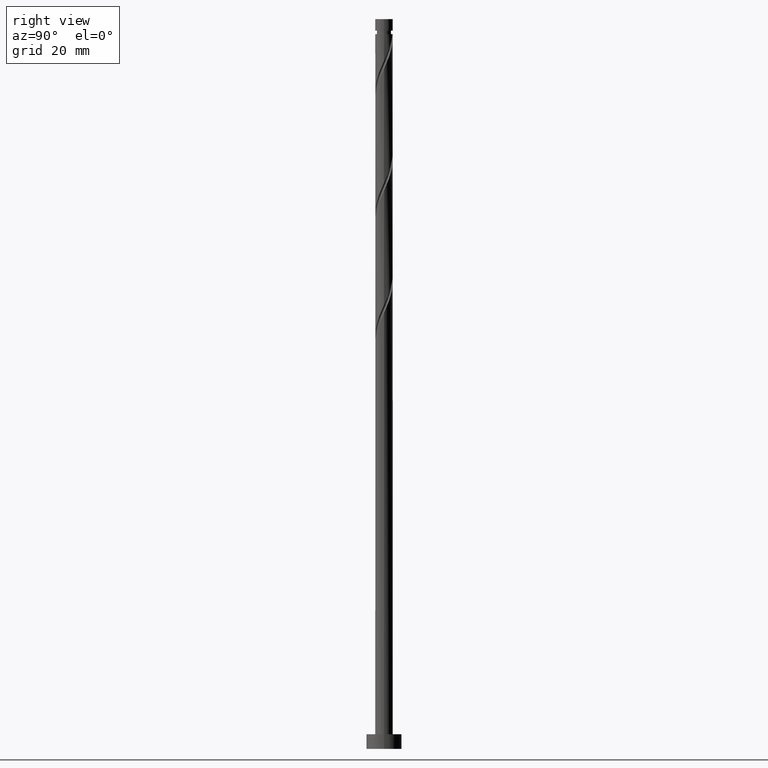
[diagram: clean part render]
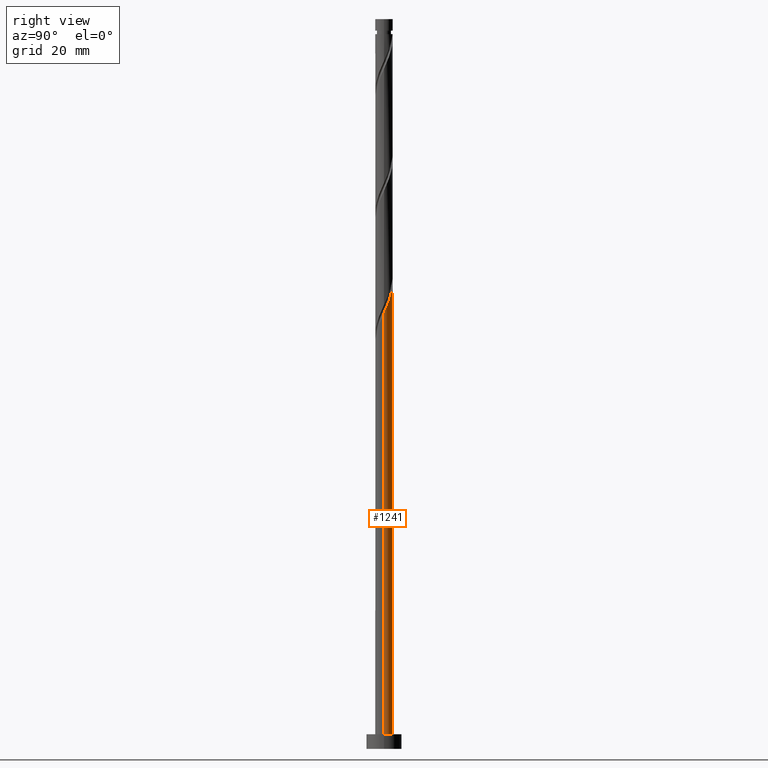
[diagram: same view with one face highlighted and labeled with its STEP entity id]
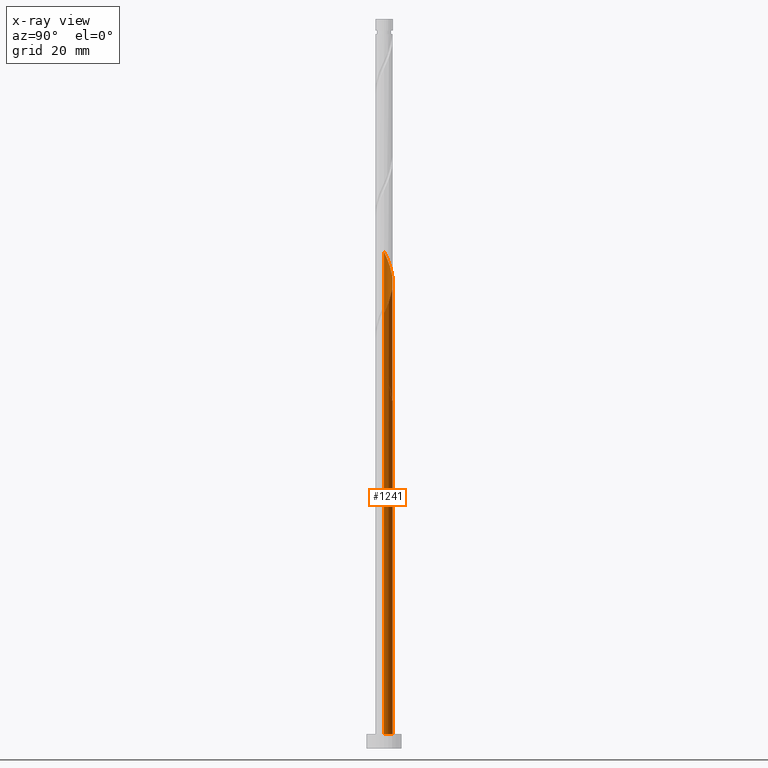
[diagram: x-ray of the same camera — body ghosted, the highlighted face saturated]
A machine part, right view. The second image highlights one B-rep face of the part: STEP entity #1241.
The next image is the same camera in x-ray: the body ghosted, the highlighted face saturated — about 0% of this face is hidden behind the body in this view.
In plain terms, the highlighted cylindrical surface (edge-blend (fillet) strip) has radius 3 mm, axis along (-0, -0, -1).
Its self-contained STEP definition (entity closure, byte-faithful):
#4 = VERTEX_POINT ( 'NONE', #1397 ) ;
#45 = DIRECTION ( 'NONE',  ( -1.000000000000000000, 0.000000000000000000, 0.000000000000000000 ) ) ;
#54 = CARTESIAN_POINT ( 'NONE',  ( 2.080442193850961630, 2.161425519892978375, 154.1453043088826007 ) ) ;
#60 = VECTOR ( 'NONE', #279, 1000.000000000000000 ) ;
#61 = CARTESIAN_POINT ( 'NONE',  ( 2.846604600309533772, 0.9470175550097431616, 150.9401761037544247 ) ) ;
#63 = LINE ( 'NONE', #1486, #1101 ) ;
#73 = CARTESIAN_POINT ( 'NONE',  ( 2.342886767063572684, 1.908814102736323681, 153.3440222576006136 ) ) ;
#98 = AXIS2_PLACEMENT_3D ( 'NONE', #1682, #816, #1829 ) ;
#166 = ORIENTED_EDGE ( 'NONE', *, *, #914, .F. ) ;
#198 = CARTESIAN_POINT ( 'NONE',  ( -0.9539730929374208301, 2.867511991263173687, 161.3568427704211672 ) ) ;
#207 = CARTESIAN_POINT ( 'NONE',  ( -2.177300491905833191, 2.095722369502528881, 164.5619709755492863 ) ) ;
#211 = EDGE_CURVE ( 'NONE', #1287, #4, #1269, .T. ) ;
#214 = CARTESIAN_POINT ( 'NONE',  ( -2.615571287713479354, 1.513762372691146441, 166.1645350781134312 ) ) ;
#216 = LINE ( 'NONE', #787, #1446 ) ;
#224 = CARTESIAN_POINT ( 'NONE',  ( 0.2400118315905276078, 3.012488008736832423, 119.6901761037544247 ) ) ;
#255 = DIRECTION ( 'NONE',  ( 1.000000000000000000, 0.000000000000000000, 0.000000000000000000 ) ) ;
#257 = VERTEX_POINT ( 'NONE', #1753 ) ;
#274 = ORIENTED_EDGE ( 'NONE', *, *, #1664, .F. ) ;
#279 = DIRECTION ( 'NONE',  ( -0.000000000000000000, -0.000000000000000000, -1.000000000000000000 ) ) ;
#287 = EDGE_CURVE ( 'NONE', #257, #1669, #63, .T. ) ;
#289 = CARTESIAN_POINT ( 'NONE',  ( 3.000000000000005773, 1.465681976262077287E-15, 148.8109721765805489 ) ) ;
#299 = CARTESIAN_POINT ( 'NONE',  ( -2.960644198141485717, 0.4843407189274817060, 126.9017145652928917 ) ) ;
#309 = CARTESIAN_POINT ( 'NONE',  ( -3.000000000000006217, -1.018499414116810806E-14, 127.9776388432472203 ) ) ;
#317 = CARTESIAN_POINT ( 'NONE',  ( -0.9539730929374208301, 2.867511991263173687, 119.6901761037544532 ) ) ;
#334 = VERTEX_POINT ( 'NONE', #1494 ) ;
#343 = ORIENTED_EDGE ( 'NONE', *, *, #1766, .T. ) ;
#346 = CARTESIAN_POINT ( 'NONE',  ( 2.731615850633955400, 1.292657931028937446, 151.7414581550365540 ) ) ;
#357 = CARTESIAN_POINT ( 'NONE',  ( -3.000000000000000444, 3.021099583723894621E-15, 130.6334825950309266 ) ) ;
#365 = CARTESIAN_POINT ( 'NONE',  ( -3.000000000000000444, 0.1193193910103026029, 130.3693116793979812 ) ) ;
#381 = ORIENTED_EDGE ( 'NONE', *, *, #1369, .T. ) ;
#412 = CARTESIAN_POINT ( 'NONE',  ( 0.000000000000000000, 0.000000000000000000, 5.000000000000000000 ) ) ;
#447 = EDGE_CURVE ( 'NONE', #1669, #334, #670, .T. ) ;
#481 = AXIS2_PLACEMENT_3D ( 'NONE', #1037, #1204, #45 ) ;
#483 = CARTESIAN_POINT ( 'NONE',  ( -3.000000000000005773, -1.809668562527666872E-15, 169.6443055099138064 ) ) ;
#491 = CARTESIAN_POINT ( 'NONE',  ( 0.8376755528275015017, 2.880676946169975050, 157.3504325140108335 ) ) ;
#502 = CARTESIAN_POINT ( 'NONE',  ( -1.187453060654100279, 2.778964719248852688, 122.8953043088826433 ) ) ;
#540 = AXIS2_PLACEMENT_3D ( 'NONE', #412, #1531, #255 ) ;
#610 = CARTESIAN_POINT ( 'NONE',  ( 1.502725340646227092, 2.596500828149244100, 155.7478684114467740 ) ) ;
#615 = CARTESIAN_POINT ( 'NONE',  ( -2.615571287713479354, 1.513762372691146441, 124.4978684114467882 ) ) ;
#618 = CARTESIAN_POINT ( 'NONE',  ( -3.000000000000006217, -1.018499414116810964E-14, 127.9776388432472203 ) ) ;
#644 = CARTESIAN_POINT ( 'NONE',  ( -2.758702937603747074, 1.178795190886223532, 166.9658171293954467 ) ) ;
#646 = CARTESIAN_POINT ( 'NONE',  ( -2.846604600309527555, 0.9470175550097443828, 128.5042786678569939 ) ) ;
#670 =( BOUNDED_CURVE ( )  B_SPLINE_CURVE ( 2, ( #357, #365, #924, #1364, #646, #1220, #1655, #931, #1513, #1778, #1378, #502, #794, #1502, #1646, #224, #800 ),
 .UNSPECIFIED., .F., .T. ) 
 B_SPLINE_CURVE_WITH_KNOTS ( ( 3, 2, 2, 2, 2, 2, 2, 2, 3 ),
 ( 0.9295271625973832164, 0.9326923076923077094, 0.9423076923076922906, 0.9519230769230768718, 0.9615384615384615641, 0.9711538461538461453, 0.9807692307692307265, 0.9903846153846154188, 1.000000000000000000 ),
 .UNSPECIFIED. ) 
 CURVE ( )  GEOMETRIC_REPRESENTATION_ITEM ( )  RATIONAL_B_SPLINE_CURVE ( ( 0.9061636035682878454, 0.9069090390690764947, 0.9090909090909331525, 0.9024626128164365824, 0.9090909090909331525, 0.9024626128164365824, 0.9090909090909331525, 0.9024626128164365824, 0.9090909090909331525, 0.9024626128164365824, 0.9090909090909331525, 0.9024626128164365824, 0.9090909090909331525, 0.9024626128164365824, 0.9090909090909331525, 0.9024626128164365824, 0.9090909090909331525 ) ) 
 REPRESENTATION_ITEM ( '' )  );
#689 = CARTESIAN_POINT ( 'NONE',  ( 3.000000000000000444, 3.673940397442059868E-16, 249.0000000000000000 ) ) ;
#697 = ORIENTED_EDGE ( 'NONE', *, *, #1175, .F. ) ;
#714 = CARTESIAN_POINT ( 'NONE',  ( -1.283232999305657485, 2.711699295551230460, 120.4914581550365114 ) ) ;
#746 = CARTESIAN_POINT ( 'NONE',  ( -2.177300491905833191, 2.095722369502528881, 122.8953043088826576 ) ) ;
#750 = CARTESIAN_POINT ( 'NONE',  ( -3.000000000000000444, 0.000000000000000000, 5.000000000000000000 ) ) ;
#756 = CARTESIAN_POINT ( 'NONE',  ( -1.612492905673894805, 2.555886599839288120, 121.2927402063185554 ) ) ;
#778 = CARTESIAN_POINT ( 'NONE',  ( -3.000000000000005773, 0.2437693156111384041, 169.1046047725654944 ) ) ;
#785 =( BOUNDED_CURVE ( )  B_SPLINE_CURVE ( 2, ( #289, #1758, #1354, #920, #61, #346, #893, #73, #54, #902, #610, #1599, #491, #1347, #1063, #912, #1499, #198, #786, #1045, #1483, #207, #1775, #214, #644, #1218, #1028, #778, #483 ),
 .UNSPECIFIED., .F., .T. ) 
 B_SPLINE_CURVE_WITH_KNOTS ( ( 3, 2, 2, 2, 2, 2, 2, 2, 2, 2, 2, 2, 2, 2, 3 ),
 ( 0.1795271625973834106, 0.1826923076923077094, 0.1923076923076922906, 0.2019230769230768718, 0.2115384615384615641, 0.2211538461538461453, 0.2307692307692307265, 0.2403846153846154188, 0.2500000000000000000, 0.2596153846153845812, 0.2692307692307692735, 0.2788461538461538547, 0.2884615384615384359, 0.2980769230769231282, 0.3045271625973832719 ),
 .UNSPECIFIED. ) 
 CURVE ( )  GEOMETRIC_REPRESENTATION_ITEM ( )  RATIONAL_B_SPLINE_CURVE ( ( 0.9061636035682942847, 0.9069090390690830450, 0.9090909090909394807, 0.9024626128164427996, 0.9090909090909394807, 0.9024626128164427996, 0.9090909090909394807, 0.9024626128164427996, 0.9090909090909394807, 0.9024626128164427996, 0.9090909090909394807, 0.9024626128164427996, 0.9090909090909394807, 0.9024626128164427996, 0.9090909090909394807, 0.9024626128164427996, 0.9090909090909394807, 0.9024626128164427996, 0.9090909090909394807, 0.9024626128164427996, 0.9090909090909394807, 0.9024626128164427996, 0.9090909090909394807, 0.9024626128164427996, 0.9090909090909394807, 0.9024626128164427996, 0.9090909090909394807, 0.9046444828382993464, 0.9061636035682940626 ) ) 
 REPRESENTATION_ITEM ( '' )  );
#786 = CARTESIAN_POINT ( 'NONE',  ( -1.283232999305657485, 2.711699295551230460, 162.1581248217031259 ) ) ;
#787 = CARTESIAN_POINT ( 'NONE',  ( -3.000000000000000444, 0.000000000000000000, 249.0000000000000000 ) ) ;
#794 = CARTESIAN_POINT ( 'NONE',  ( -0.8376755528274975049, 2.880676946169971053, 122.0940222576005709 ) ) ;
#800 = CARTESIAN_POINT ( 'NONE',  ( 0.5969924622639742884, 2.939999999999999503, 118.8888940524723665 ) ) ;
#816 = DIRECTION ( 'NONE',  ( -0.000000000000000000, -0.000000000000000000, -1.000000000000000000 ) ) ;
#853 = CYLINDRICAL_SURFACE ( 'NONE', #98, 3.000000000000000444 ) ;
#871 = CIRCLE ( 'NONE', #540, 3.000000000000000444 ) ;
#889 = CARTESIAN_POINT ( 'NONE',  ( -0.5969924622639734002, 2.940000000000006164, 118.8888940524723949 ) ) ;
#893 = CARTESIAN_POINT ( 'NONE',  ( 2.537251308848762932, 1.600736016882631452, 152.5427402063185411 ) ) ;
#902 = CARTESIAN_POINT ( 'NONE',  ( 1.817997620638351686, 2.414036937049631959, 154.9465863601647015 ) ) ;
#912 = CARTESIAN_POINT ( 'NONE',  ( -0.2400118315905258037, 3.012488008736838196, 159.7542786678569939 ) ) ;
#914 = EDGE_CURVE ( 'NONE', #1764, #1704, #216, .T. ) ;
#920 = CARTESIAN_POINT ( 'NONE',  ( 2.961593349985113477, 0.6013771789905509868, 150.1388940524724944 ) ) ;
#924 = CARTESIAN_POINT ( 'NONE',  ( -2.990523579387028619, 0.2382618751084448483, 130.1068427704210819 ) ) ;
#931 = CARTESIAN_POINT ( 'NONE',  ( -2.342886767063567355, 1.908814102736322571, 126.1004325140108193 ) ) ;
#962 = VERTEX_POINT ( 'NONE', #1802 ) ;
#993 = CIRCLE ( 'NONE', #481, 3.000000000000000444 ) ;
#1028 = CARTESIAN_POINT ( 'NONE',  ( -2.960644198141485717, 0.4843407189274817060, 168.5683812319595916 ) ) ;
#1034 = CARTESIAN_POINT ( 'NONE',  ( -2.396435889809656050, 1.804742371096836662, 123.6965863601647015 ) ) ;
#1037 = CARTESIAN_POINT ( 'NONE',  ( 0.000000000000000000, 0.000000000000000000, 118.8888940524723807 ) ) ;
#1045 = CARTESIAN_POINT ( 'NONE',  ( -1.612492905673894805, 2.555886599839288120, 162.9594068729852552 ) ) ;
#1063 = CARTESIAN_POINT ( 'NONE',  ( 0.1239431067051870589, 2.997438590913965584, 158.9529966165749784 ) ) ;
#1097 = ORIENTED_EDGE ( 'NONE', *, *, #447, .F. ) ;
#1101 = VECTOR ( 'NONE', #1205, 1000.000000000000000 ) ;
#1160 = CARTESIAN_POINT ( 'NONE',  ( -2.901834587494017015, 0.8438280090813002898, 126.1004325140109046 ) ) ;
#1175 = EDGE_CURVE ( 'NONE', #962, #1764, #1445, .T. ) ;
#1186 = CARTESIAN_POINT ( 'NONE',  ( -3.000000000000000444, 3.021099583723894621E-15, 130.6334825950309266 ) ) ;
#1204 = DIRECTION ( 'NONE',  ( 0.000000000000000000, -0.000000000000000000, -1.000000000000000000 ) ) ;
#1205 = DIRECTION ( 'NONE',  ( -0.000000000000000000, -0.000000000000000000, -1.000000000000000000 ) ) ;
#1218 = CARTESIAN_POINT ( 'NONE',  ( -2.901834587494017015, 0.8438280090813002898, 167.7670991806775191 ) ) ;
#1220 = CARTESIAN_POINT ( 'NONE',  ( -2.731615850633949183, 1.292657931028937446, 127.7029966165749642 ) ) ;
#1241 = ADVANCED_FACE ( 'NONE', ( #1573 ), #853, .T. ) ;
#1265 = ORIENTED_EDGE ( 'NONE', *, *, #211, .T. ) ;
#1269 = LINE ( 'NONE', #689, #60 ) ;
#1287 = VERTEX_POINT ( 'NONE', #1560 ) ;
#1347 = CARTESIAN_POINT ( 'NONE',  ( 0.4878980450008973957, 2.982389173091094303, 158.1517145652929344 ) ) ;
#1354 = CARTESIAN_POINT ( 'NONE',  ( 2.990523579387034392, 0.2382618751084427666, 149.3376120011903367 ) ) ;
#1363 = DIRECTION ( 'NONE',  ( -0.000000000000000000, -0.000000000000000000, -1.000000000000000000 ) ) ;
#1364 = CARTESIAN_POINT ( 'NONE',  ( -2.961593349985106816, 0.6013771789905510978, 129.3055607191390379 ) ) ;
#1369 = EDGE_CURVE ( 'NONE', #4, #1704, #871, .T. ) ;
#1378 = CARTESIAN_POINT ( 'NONE',  ( -1.502725340646222207, 2.596500828149240991, 123.6965863601647015 ) ) ;
#1395 = EDGE_LOOP ( 'NONE', ( #274, #1265, #381, #166, #697, #343, #1097, #1715 ) ) ;
#1397 = CARTESIAN_POINT ( 'NONE',  ( 3.000000000000000444, 3.673940397442059868E-16, 5.000000000000000000 ) ) ;
#1445 =( BOUNDED_CURVE ( )  B_SPLINE_CURVE ( 2, ( #889, #317, #714, #756, #1739, #746, #1034, #615, #1597, #1160, #299, #1729, #309 ),
 .UNSPECIFIED., .F., .T. ) 
 B_SPLINE_CURVE_WITH_KNOTS ( ( 3, 2, 2, 2, 2, 2, 3 ),
 ( 0.000000000000000000, 0.009615384615384581224, 0.01923076923076927347, 0.02884615384615385469, 0.03846153846153843592, 0.04807692307692312816, 0.05452716259738337595 ),
 .UNSPECIFIED. ) 
 CURVE ( )  GEOMETRIC_REPRESENTATION_ITEM ( )  RATIONAL_B_SPLINE_CURVE ( ( 0.9090909090909394807, 0.9024626128164427996, 0.9090909090909394807, 0.9024626128164427996, 0.9090909090909394807, 0.9024626128164427996, 0.9090909090909394807, 0.9024626128164427996, 0.9090909090909394807, 0.9024626128164427996, 0.9090909090909394807, 0.9046444828382993464, 0.9061636035682942847 ) ) 
 REPRESENTATION_ITEM ( '' )  );
#1446 = VECTOR ( 'NONE', #1363, 1000.000000000000000 ) ;
#1483 = CARTESIAN_POINT ( 'NONE',  ( -1.894896698789863887, 2.325804484670907613, 163.7606889242672992 ) ) ;
#1486 = CARTESIAN_POINT ( 'NONE',  ( -3.000000000000000444, 0.000000000000000000, 249.0000000000000000 ) ) ;
#1494 = CARTESIAN_POINT ( 'NONE',  ( 0.5969924622639742884, 2.939999999999999503, 118.8888940524723807 ) ) ;
#1499 = CARTESIAN_POINT ( 'NONE',  ( -0.5969924622639732892, 2.940000000000006164, 160.5555607191390664 ) ) ;
#1502 = CARTESIAN_POINT ( 'NONE',  ( -0.4878980450008943426, 2.982389173091089418, 121.2927402063185411 ) ) ;
#1513 = CARTESIAN_POINT ( 'NONE',  ( -2.080442193850956301, 2.161425519892975711, 125.2991504627287753 ) ) ;
#1531 = DIRECTION ( 'NONE',  ( 0.000000000000000000, 0.000000000000000000, 1.000000000000000000 ) ) ;
#1560 = CARTESIAN_POINT ( 'NONE',  ( 3.000000000000005329, 1.465681976262077287E-15, 148.8109721765805489 ) ) ;
#1573 = FACE_OUTER_BOUND ( 'NONE', #1395, .T. ) ;
#1597 = CARTESIAN_POINT ( 'NONE',  ( -2.758702937603747074, 1.178795190886223532, 125.2991504627288037 ) ) ;
#1599 = CARTESIAN_POINT ( 'NONE',  ( 1.187453060654103609, 2.778964719248857129, 156.5491504627288464 ) ) ;
#1646 = CARTESIAN_POINT ( 'NONE',  ( -0.1239431067051835061, 2.997438590913960255, 120.4914581550364971 ) ) ;
#1655 = CARTESIAN_POINT ( 'NONE',  ( -2.537251308848757603, 1.600736016882629675, 126.9017145652928633 ) ) ;
#1664 = EDGE_CURVE ( 'NONE', #1287, #257, #785, .T. ) ;
#1669 = VERTEX_POINT ( 'NONE', #1186 ) ;
#1682 = CARTESIAN_POINT ( 'NONE',  ( 0.000000000000000000, 0.000000000000000000, 249.0000000000000000 ) ) ;
#1704 = VERTEX_POINT ( 'NONE', #750 ) ;
#1715 = ORIENTED_EDGE ( 'NONE', *, *, #287, .F. ) ;
#1729 = CARTESIAN_POINT ( 'NONE',  ( -3.000000000000006217, 0.2437693156111344628, 127.4379381058989082 ) ) ;
#1739 = CARTESIAN_POINT ( 'NONE',  ( -1.894896698789863887, 2.325804484670907613, 122.0940222576005851 ) ) ;
#1753 = CARTESIAN_POINT ( 'NONE',  ( -3.000000000000005773, -1.809668562527666872E-15, 169.6443055099138064 ) ) ;
#1758 = CARTESIAN_POINT ( 'NONE',  ( 3.000000000000004441, 0.1193193910103082234, 149.0751430922134659 ) ) ;
#1764 = VERTEX_POINT ( 'NONE', #618 ) ;
#1766 = EDGE_CURVE ( 'NONE', #962, #334, #993, .T. ) ;
#1775 = CARTESIAN_POINT ( 'NONE',  ( -2.396435889809656050, 1.804742371096836662, 165.3632530268313872 ) ) ;
#1778 = CARTESIAN_POINT ( 'NONE',  ( -1.817997620638346135, 2.414036937049629294, 124.4978684114467455 ) ) ;
#1802 = CARTESIAN_POINT ( 'NONE',  ( -0.5969924622639734002, 2.940000000000006164, 118.8888940524723807 ) ) ;
#1829 = DIRECTION ( 'NONE',  ( -1.000000000000000000, 0.000000000000000000, 0.000000000000000000 ) ) ;